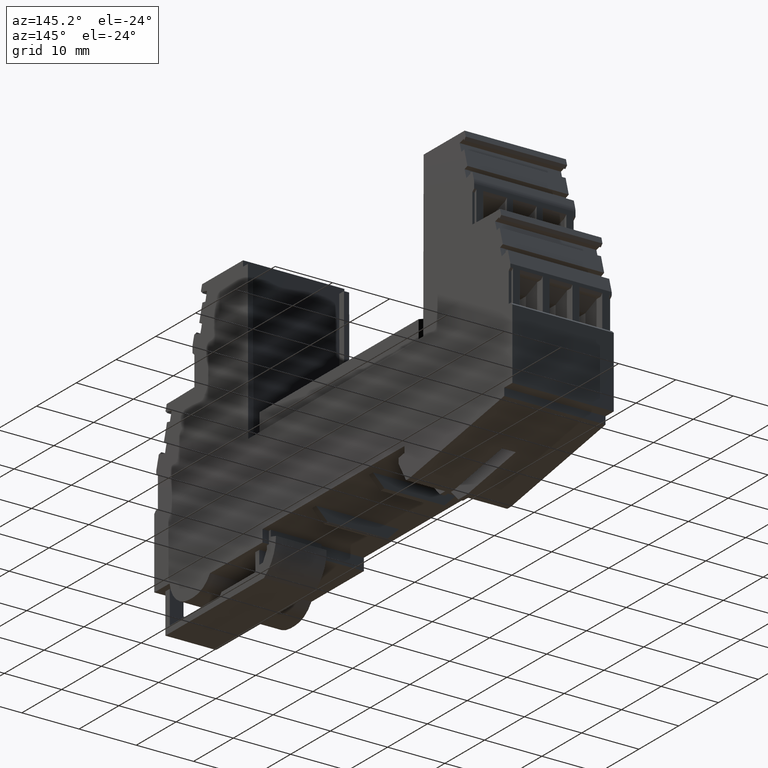
[diagram: clean part render]
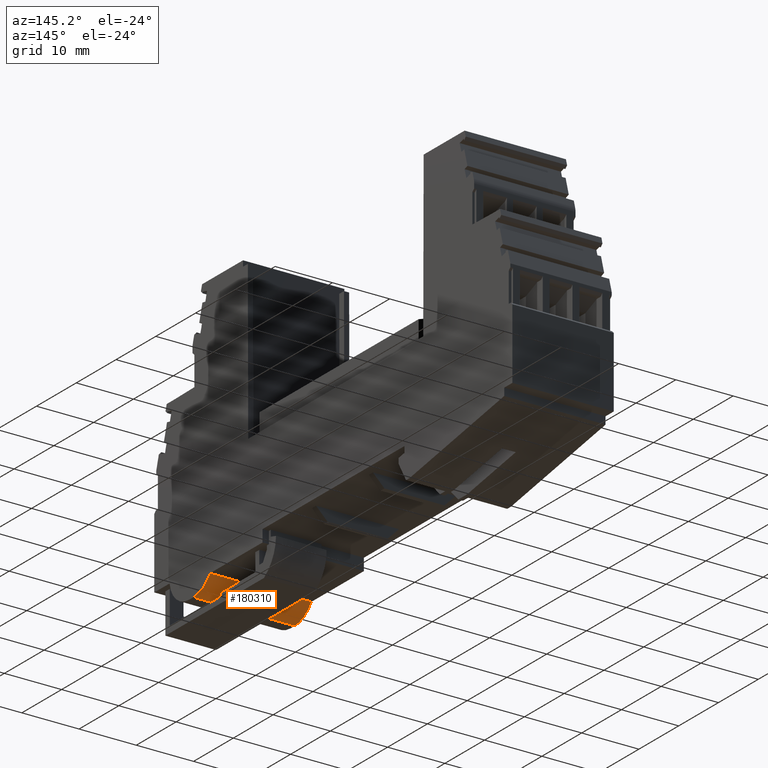
[diagram: same view with one face highlighted and labeled with its STEP entity id]
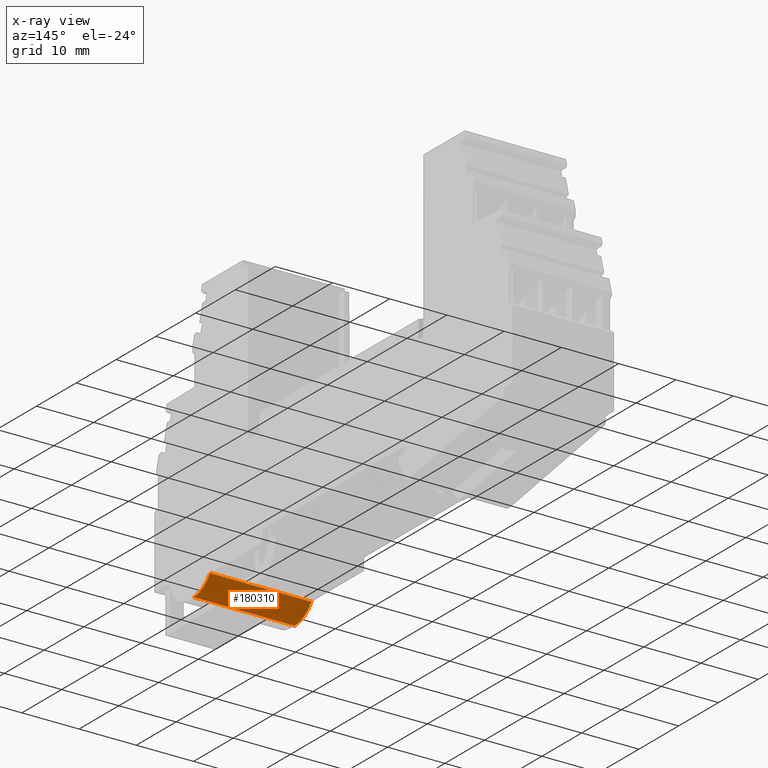
[diagram: x-ray of the same camera — body ghosted, the highlighted face saturated]
A machine part, auxiliary view. The second image highlights one B-rep face of the part: STEP entity #180310.
The next image is the same camera in x-ray: the body ghosted, the highlighted face saturated — about 9% of this face is hidden behind the body in this view.
In plain terms, the highlighted cylindrical surface (edge-blend (fillet) strip) has radius 5 mm, axis along (1, -0, -0).
Its self-contained STEP definition (entity closure, byte-faithful):
#6210=CARTESIAN_POINT('',(38.347174639311,14.956274052443,-37.3));
#6220=VERTEX_POINT('',#6210);
#6250=CARTESIAN_POINT('',(34.1713513671885,17.706274052443,-37.3));
#6260=DIRECTION('',(8.99708997865547E-21,-2.60974393670053E-32,1.));
#6270=DIRECTION('',(1.,-1.20996962449382E-16,-8.99708997865547E-21));
#6280=AXIS2_PLACEMENT_3D('',#6250,#6260,#6270);
#6290=CIRCLE('',#6280,5.);
#6300=CARTESIAN_POINT('',(34.1713513671885,12.706274052443,-37.3));
#6310=VERTEX_POINT('',#6300);
#6320=EDGE_CURVE('',#6310,#6220,#6290,.T.);
#14660=CARTESIAN_POINT('',(34.1713513671885,12.706274052443,-55.));
#14670=VERTEX_POINT('',#14660);
#14700=CARTESIAN_POINT('',(34.1713513671885,17.706274052443,-55.));
#14710=DIRECTION('',(8.99708997865547E-21,-2.60974393670053E-32,1.));
#14720=DIRECTION('',(1.,-1.20996962449382E-16,-8.99708997865547E-21));
#14730=AXIS2_PLACEMENT_3D('',#14700,#14710,#14720);
#14740=CIRCLE('',#14730,5.);
#14750=CARTESIAN_POINT('',(38.347174639311,14.956274052443,-55.));
#14760=VERTEX_POINT('',#14750);
#14770=EDGE_CURVE('',#14670,#14760,#14740,.T.);
#124030=CARTESIAN_POINT('',(38.347174639311,14.956274052443,-55.));
#124040=DIRECTION('',(8.99708997865547E-21,-2.60974393670053E-32,1.));
#124050=VECTOR('',#124040,1.);
#124060=LINE('',#124030,#124050);
#124070=EDGE_CURVE('',#14760,#6220,#124060,.T.);
#180030=CARTESIAN_POINT('',(34.1713513671885,12.706274052443,-55.));
#180040=DIRECTION('',(8.99708997865547E-21,-2.60974393670053E-32,1.));
#180050=VECTOR('',#180040,1.);
#180060=LINE('',#180030,#180050);
#180070=EDGE_CURVE('',#14670,#6310,#180060,.T.);
#180200=CARTESIAN_POINT('',(34.1713513671885,17.706274052443,-55.));
#180210=DIRECTION('',(8.99708997865547E-21,-2.60974393670053E-32,1.));
#180220=DIRECTION('',(1.,-1.20996962449382E-16,-8.99708997865547E-21));
#180230=AXIS2_PLACEMENT_3D('',#180200,#180210,#180220);
#180240=CYLINDRICAL_SURFACE('',#180230,5.);
#180250=ORIENTED_EDGE('',*,*,#180070,.F.);
#180260=ORIENTED_EDGE('',*,*,#6320,.F.);
#180270=ORIENTED_EDGE('',*,*,#124070,.T.);
#180280=ORIENTED_EDGE('',*,*,#14770,.T.);
#180290=EDGE_LOOP('',(#180280,#180270,#180260,#180250));
#180300=FACE_OUTER_BOUND('',#180290,.T.);
#180310=ADVANCED_FACE('',(#180300),#180240,.T.);